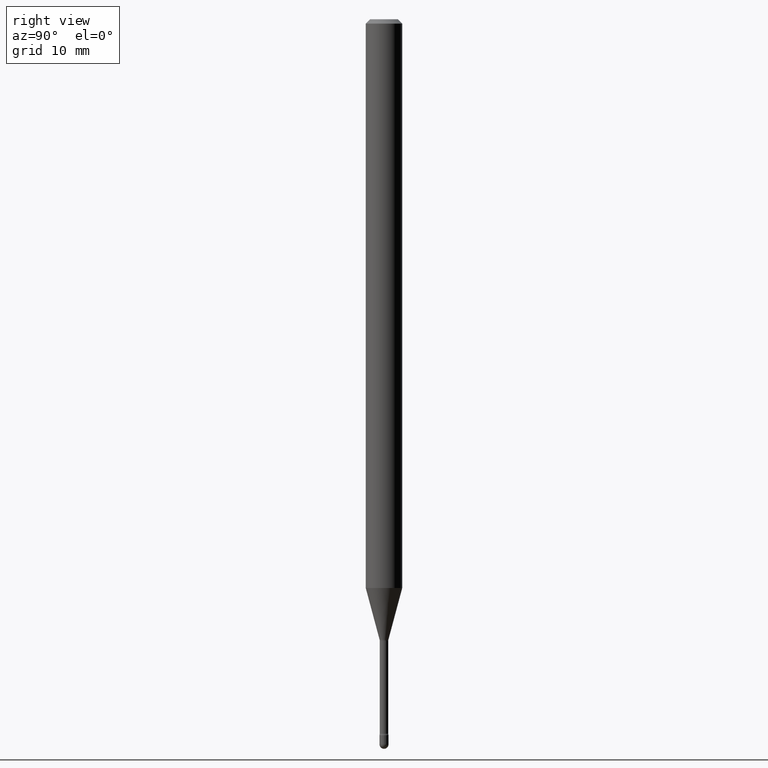
[diagram: clean part render]
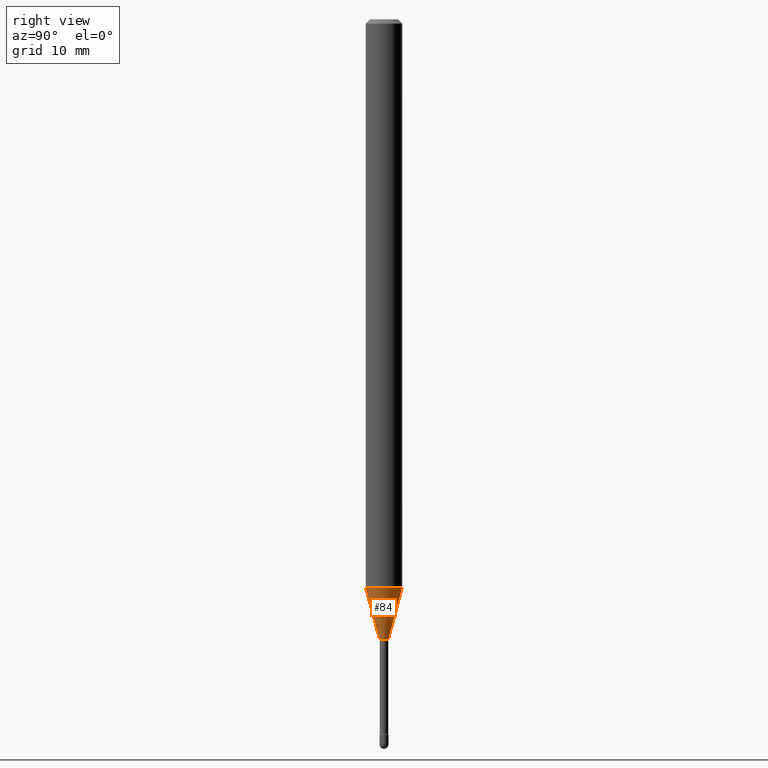
[diagram: same view with one face highlighted and labeled with its STEP entity id]
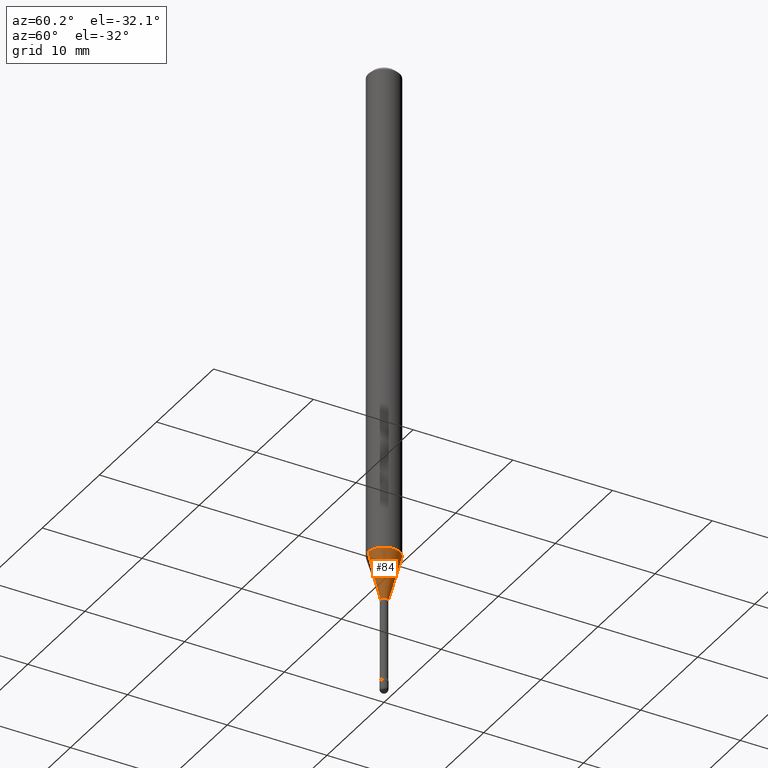
[diagram: same view with one face highlighted and labeled with its STEP entity id]
A machine part, right view. The second image highlights one B-rep face of the part: STEP entity #84.
A second angle (auxiliary view) of the same face is appended — the face is thin or edge-on in the first view.
In plain terms, the highlighted conical surface has half-angle 15 deg.
Its self-contained STEP definition (entity closure, byte-faithful):
#1 = DIRECTION ( 'NONE',  ( -6.982962677686265922E-15, -1.000000000000000000, 0.000000000000000000 ) ) ;
#16 = LINE ( 'NONE', #516, #497 ) ;
#25 = EDGE_CURVE ( 'NONE', #337, #542, #448, .T. ) ;
#32 = LINE ( 'NONE', #221, #112 ) ;
#41 = DIRECTION ( 'NONE',  ( -6.982962677686265922E-15, -1.000000000000000000, 4.370956789862821150E-15 ) ) ;
#65 = CARTESIAN_POINT ( 'NONE',  ( -1.051711872097297299E-16, -0.01506111260567140342, -2.126092501787273381 ) ) ;
#84 = ADVANCED_FACE ( 'NONE', ( #218 ), #456, .T. ) ;
#108 = VERTEX_POINT ( 'NONE', #157 ) ;
#111 = VERTEX_POINT ( 'NONE', #240 ) ;
#112 = VECTOR ( 'NONE', #389, 39.37007874015748854 ) ;
#144 = DIRECTION ( 'NONE',  ( -2.445472010216045436E-29, 3.491476750488522114E-15, 1.000000000000000000 ) ) ;
#153 = EDGE_CURVE ( 'NONE', #542, #111, #32, .T. ) ;
#155 = ORIENTED_EDGE ( 'NONE', *, *, #153, .T. ) ;
#157 = CARTESIAN_POINT ( 'NONE',  ( -4.364351673553439926E-16, -0.06250000000000681399, -1.949048163777072240 ) ) ;
#178 = DIRECTION ( 'NONE',  ( -6.982962677686265922E-15, -1.000000000000000000, 0.000000000000000000 ) ) ;
#218 = FACE_OUTER_BOUND ( 'NONE', #461, .T. ) ;
#221 = CARTESIAN_POINT ( 'NONE',  ( 1.070156415442461480E-16, 0.01506111260565655766, -2.126092501787273381 ) ) ;
#239 = ORIENTED_EDGE ( 'NONE', *, *, #507, .F. ) ;
#240 = CARTESIAN_POINT ( 'NONE',  ( 4.440892098501100464E-16, 0.06249999999999317907, -1.949048163777072684 ) ) ;
#278 = ORIENTED_EDGE ( 'NONE', *, *, #25, .T. ) ;
#287 = AXIS2_PLACEMENT_3D ( 'NONE', #525, #144, #41 ) ;
#332 = AXIS2_PLACEMENT_3D ( 'NONE', #487, #541, #1 ) ;
#337 = VERTEX_POINT ( 'NONE', #65 ) ;
#348 = CARTESIAN_POINT ( 'NONE',  ( 5.199299704250984208E-29, -7.423202539378241076E-15, -2.126092501787273381 ) ) ;
#389 = DIRECTION ( 'NONE',  ( 1.839019923739594793E-15, 0.2588190451025241812, 0.9659258262890673130 ) ) ;
#420 = ORIENTED_EDGE ( 'NONE', *, *, #481, .F. ) ;
#448 = CIRCLE ( 'NONE', #332, 0.01506111260566398054 ) ;
#456 = CONICAL_SURFACE ( 'NONE', #548, 0.01506111260566398054, 0.2617993877991495189 ) ;
#461 = EDGE_LOOP ( 'NONE', ( #278, #155, #420, #239 ) ) ;
#472 = DIRECTION ( 'NONE',  ( -1.807323732225324617E-15, -0.2588190451025174088, 0.9659258262890690894 ) ) ;
#475 = CARTESIAN_POINT ( 'NONE',  ( 2.755524256971783745E-16, 0.01506111260565655939, -2.126092501787273381 ) ) ;
#478 = CIRCLE ( 'NONE', #287, 0.06250000000000000000 ) ;
#481 = EDGE_CURVE ( 'NONE', #108, #111, #478, .T. ) ;
#487 = CARTESIAN_POINT ( 'NONE',  ( 5.199299704250984208E-29, -7.423202539378241076E-15, -2.126092501787273381 ) ) ;
#497 = VECTOR ( 'NONE', #472, 39.37007874015748854 ) ;
#507 = EDGE_CURVE ( 'NONE', #337, #108, #16, .T. ) ;
#516 = CARTESIAN_POINT ( 'NONE',  ( -1.051711872097297299E-16, -0.01506111260567140342, -2.126092501787273381 ) ) ;
#521 = DIRECTION ( 'NONE',  ( -2.445472010216045436E-29, 3.491476750488522114E-15, 1.000000000000000000 ) ) ;
#525 = CARTESIAN_POINT ( 'NONE',  ( 4.766342731079809553E-29, -6.805056349409992834E-15, -1.949048163777072462 ) ) ;
#541 = DIRECTION ( 'NONE',  ( -2.445472010216045436E-29, 3.491476750488522114E-15, 1.000000000000000000 ) ) ;
#542 = VERTEX_POINT ( 'NONE', #475 ) ;
#548 = AXIS2_PLACEMENT_3D ( 'NONE', #348, #521, #178 ) ;